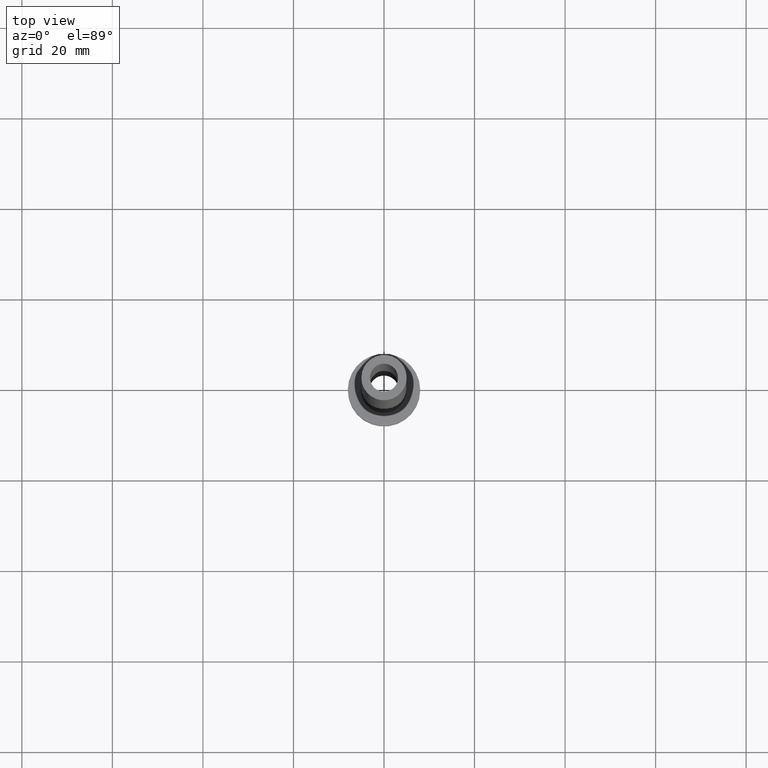
[diagram: clean part render]
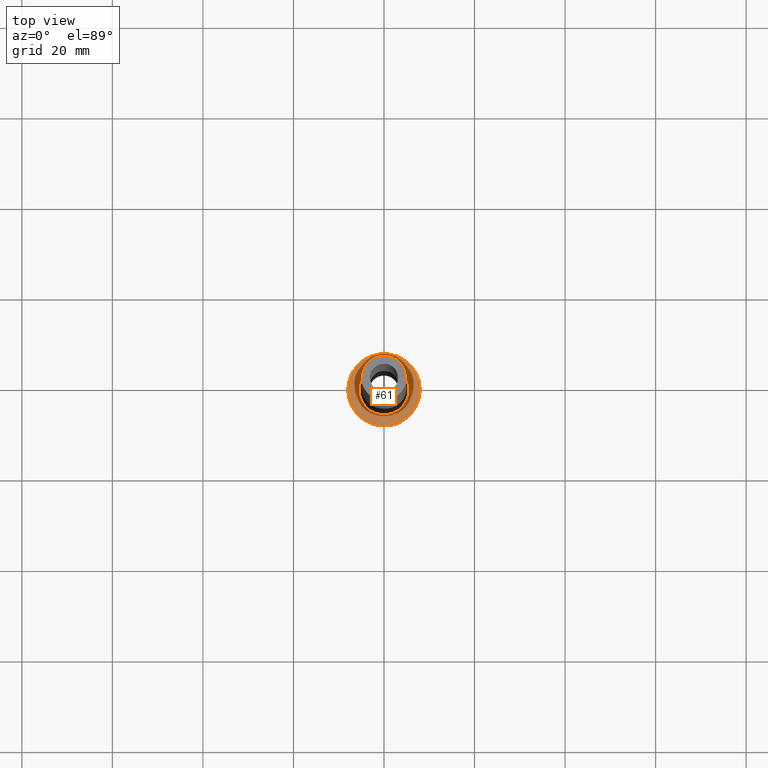
[diagram: same view with one face highlighted and labeled with its STEP entity id]
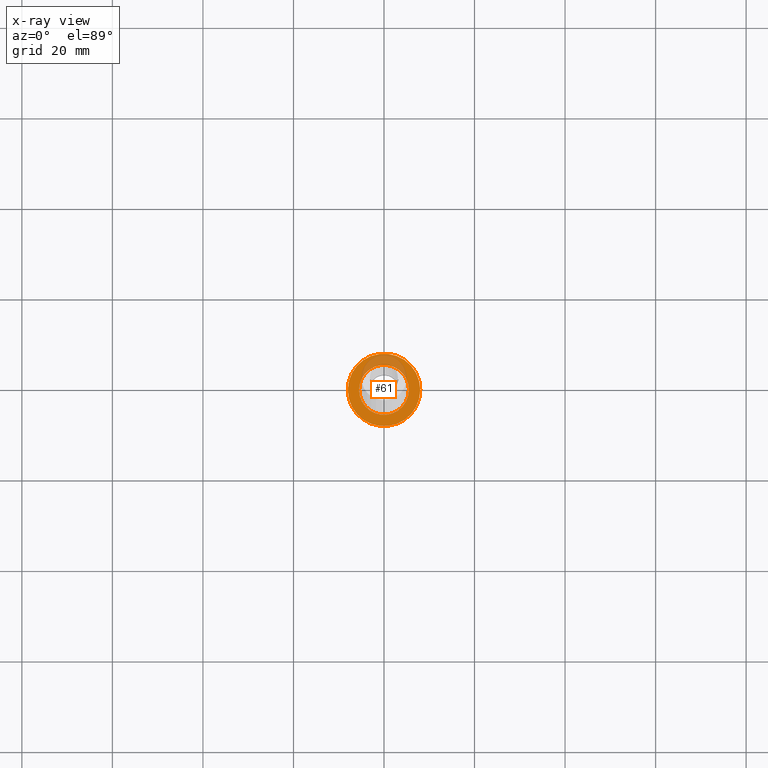
[diagram: x-ray of the same camera — body ghosted, the highlighted face saturated]
A machine part, top view. The second image highlights one B-rep face of the part: STEP entity #61.
The next image is the same camera in x-ray: the body ghosted, the highlighted face saturated — about 19% of this face is hidden behind the body in this view.
In plain terms, the highlighted planar face has unit normal (0, 0, 1).
Its self-contained STEP definition (entity closure, byte-faithful):
#10 = DIRECTION ( 'NONE',  ( 1.000000000000000000, 0.000000000000000000, -0.000000000000000000 ) ) ;
#11 = EDGE_CURVE ( 'NONE', #94, #293, #193, .T. ) ;
#14 = FACE_OUTER_BOUND ( 'NONE', #98, .T. ) ;
#15 = VERTEX_POINT ( 'NONE', #380 ) ;
#18 = AXIS2_PLACEMENT_3D ( 'NONE', #272, #381, #68 ) ;
#21 = ORIENTED_EDGE ( 'NONE', *, *, #374, .T. ) ;
#32 = DIRECTION ( 'NONE',  ( 1.000000000000000000, 0.000000000000000000, 0.000000000000000000 ) ) ;
#44 = ORIENTED_EDGE ( 'NONE', *, *, #285, .T. ) ;
#49 = AXIS2_PLACEMENT_3D ( 'NONE', #239, #207, #32 ) ;
#56 = DIRECTION ( 'NONE',  ( -0.000000000000000000, -0.000000000000000000, -1.000000000000000000 ) ) ;
#61 = ADVANCED_FACE ( 'NONE', ( #215, #14 ), #430, .T. ) ;
#64 = CARTESIAN_POINT ( 'NONE',  ( 0.000000000000000000, 0.000000000000000000, 5.000000000000000000 ) ) ;
#68 = DIRECTION ( 'NONE',  ( 1.000000000000000000, 0.000000000000000000, 0.000000000000000000 ) ) ;
#87 = DIRECTION ( 'NONE',  ( 1.000000000000000000, 0.000000000000000000, 0.000000000000000000 ) ) ;
#94 = VERTEX_POINT ( 'NONE', #320 ) ;
#98 = EDGE_LOOP ( 'NONE', ( #445, #44 ) ) ;
#102 = EDGE_LOOP ( 'NONE', ( #162, #21 ) ) ;
#114 = CIRCLE ( 'NONE', #176, 8.000000000000000000 ) ;
#162 = ORIENTED_EDGE ( 'NONE', *, *, #188, .T. ) ;
#169 = CARTESIAN_POINT ( 'NONE',  ( -5.500000000000000000, 6.735557395310442023E-16, 5.000000000000002665 ) ) ;
#176 = AXIS2_PLACEMENT_3D ( 'NONE', #64, #316, #346 ) ;
#188 = EDGE_CURVE ( 'NONE', #15, #302, #343, .T. ) ;
#193 = CIRCLE ( 'NONE', #49, 8.000000000000000000 ) ;
#207 = DIRECTION ( 'NONE',  ( 0.000000000000000000, 0.000000000000000000, 1.000000000000000000 ) ) ;
#215 = FACE_BOUND ( 'NONE', #102, .T. ) ;
#239 = CARTESIAN_POINT ( 'NONE',  ( 0.000000000000000000, 0.000000000000000000, 5.000000000000000000 ) ) ;
#272 = CARTESIAN_POINT ( 'NONE',  ( 0.000000000000000000, 0.000000000000000000, 5.000000000000000000 ) ) ;
#285 = EDGE_CURVE ( 'NONE', #293, #94, #114, .T. ) ;
#293 = VERTEX_POINT ( 'NONE', #414 ) ;
#302 = VERTEX_POINT ( 'NONE', #169 ) ;
#316 = DIRECTION ( 'NONE',  ( 0.000000000000000000, 0.000000000000000000, 1.000000000000000000 ) ) ;
#320 = CARTESIAN_POINT ( 'NONE',  ( -8.000000000000000000, 0.000000000000000000, 5.000000000000000000 ) ) ;
#334 = AXIS2_PLACEMENT_3D ( 'NONE', #447, #56, #87 ) ;
#343 = CIRCLE ( 'NONE', #334, 5.500000000000000000 ) ;
#346 = DIRECTION ( 'NONE',  ( 1.000000000000000000, 0.000000000000000000, 0.000000000000000000 ) ) ;
#374 = EDGE_CURVE ( 'NONE', #302, #15, #446, .T. ) ;
#380 = CARTESIAN_POINT ( 'NONE',  ( 5.500000000000000000, 0.000000000000000000, 5.000000000000002665 ) ) ;
#381 = DIRECTION ( 'NONE',  ( -0.000000000000000000, -0.000000000000000000, -1.000000000000000000 ) ) ;
#386 = CARTESIAN_POINT ( 'NONE',  ( 0.000000000000000000, 0.000000000000000000, 5.000000000000000000 ) ) ;
#414 = CARTESIAN_POINT ( 'NONE',  ( 8.000000000000000000, 9.797174393178825657E-16, 5.000000000000000000 ) ) ;
#430 = PLANE ( 'NONE',  #460 ) ;
#435 = DIRECTION ( 'NONE',  ( 0.000000000000000000, 0.000000000000000000, 1.000000000000000000 ) ) ;
#445 = ORIENTED_EDGE ( 'NONE', *, *, #11, .T. ) ;
#446 = CIRCLE ( 'NONE', #18, 5.500000000000000000 ) ;
#447 = CARTESIAN_POINT ( 'NONE',  ( 0.000000000000000000, 0.000000000000000000, 5.000000000000000000 ) ) ;
#460 = AXIS2_PLACEMENT_3D ( 'NONE', #386, #435, #10 ) ;